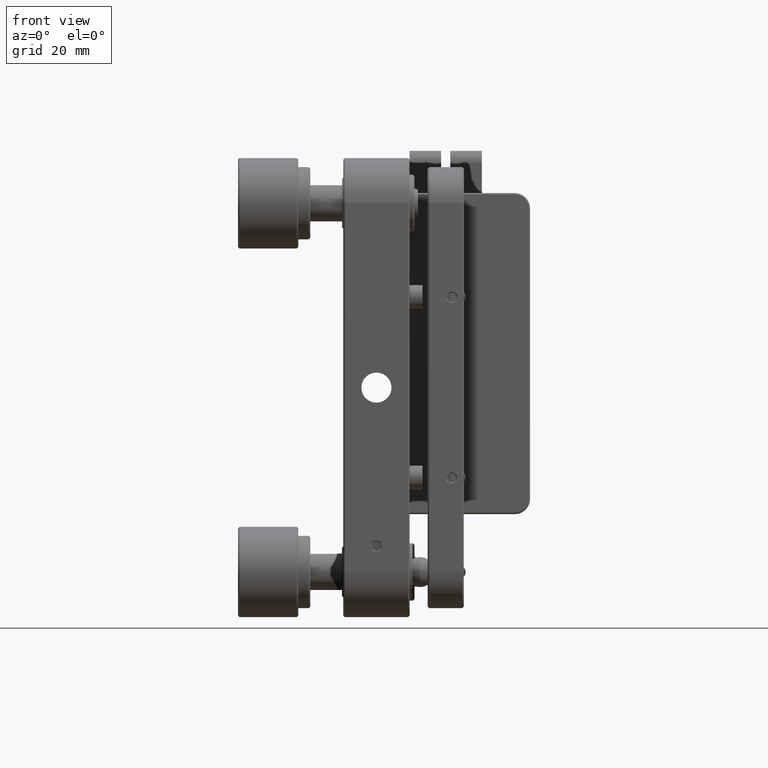
[diagram: clean part render]
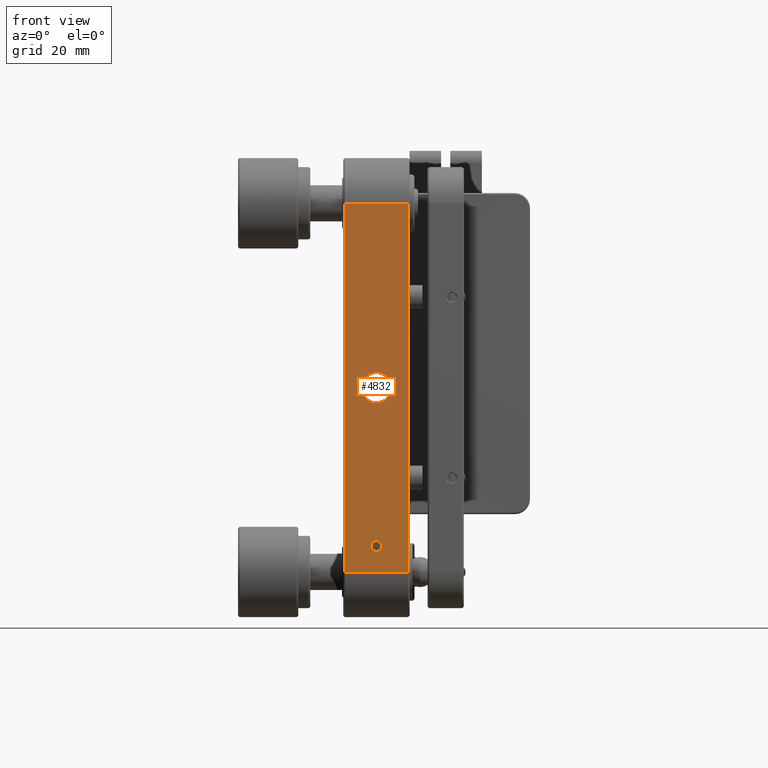
[diagram: same view with one face highlighted and labeled with its STEP entity id]
A machine part, front view. The second image highlights one B-rep face of the part: STEP entity #4832.
In plain terms, the highlighted planar face has unit normal (0, -1, 0).
Its self-contained STEP definition (entity closure, byte-faithful):
#986 = CARTESIAN_POINT ( 'NONE',  ( -6.301199999999999690, -38.10000000000000142, 30.60000000000000142 ) ) ;
#1508 = CARTESIAN_POINT ( 'NONE',  ( 1.583578760805418912E-15, -38.10000000000000142, 2.499999999999987566 ) ) ;
#1657 = CARTESIAN_POINT ( 'NONE',  ( -5.249999999999990230, -38.10000000000000142, 36.72120000000000317 ) ) ;
#2444 = CARTESIAN_POINT ( 'NONE',  ( -5.249999999999986677, -38.09999999999999432, -30.59999999999998366 ) ) ;
#2565 = DIRECTION ( 'NONE',  ( 0.000000000000000000, 0.000000000000000000, -1.000000000000000000 ) ) ;
#3089 = DIRECTION ( 'NONE',  ( 0.000000000000000000, -0.000000000000000000, -1.000000000000000000 ) ) ;
#3486 = ORIENTED_EDGE ( 'NONE', *, *, #30453, .T. ) ;
#3699 = CARTESIAN_POINT ( 'NONE',  ( 5.250000000000011546, -38.10000000000001563, 30.60000000000002274 ) ) ;
#4149 = EDGE_CURVE ( 'NONE', #18519, #43797, #23064, .T. ) ;
#4412 = EDGE_CURVE ( 'NONE', #18931, #13439, #33687, .T. ) ;
#4832 = ADVANCED_FACE ( 'NONE', ( #7666, #44628, #15331 ), #14859, .T. ) ;
#5293 = CARTESIAN_POINT ( 'NONE',  ( 1.277417061018581239E-15, -38.10000000000000142, -6.081347663385001879E-15 ) ) ;
#7166 = EDGE_CURVE ( 'NONE', #13439, #18931, #40542, .T. ) ;
#7666 = FACE_BOUND ( 'NONE', #19840, .T. ) ;
#9333 = CARTESIAN_POINT ( 'NONE',  ( 5.250000000000015987, -38.10000000000001563, -36.72120000000000317 ) ) ;
#10008 = DIRECTION ( 'NONE',  ( 0.000000000000000000, 1.000000000000000000, -0.000000000000000000 ) ) ;
#10637 = EDGE_CURVE ( 'NONE', #28391, #34906, #25081, .T. ) ;
#10994 = DIRECTION ( 'NONE',  ( 0.000000000000000000, 0.000000000000000000, -1.000000000000000000 ) ) ;
#11392 = DIRECTION ( 'NONE',  ( 0.000000000000000000, 0.000000000000000000, -1.000000000000000000 ) ) ;
#12252 = DIRECTION ( 'NONE',  ( -1.000000000000000000, -0.000000000000000000, -0.000000000000000000 ) ) ;
#13439 = VERTEX_POINT ( 'NONE', #32873 ) ;
#14859 = PLANE ( 'NONE',  #37484 ) ;
#15331 = FACE_BOUND ( 'NONE', #43031, .T. ) ;
#17149 = DIRECTION ( 'NONE',  ( -1.000000000000000000, 0.000000000000000000, 0.000000000000000000 ) ) ;
#17150 = ORIENTED_EDGE ( 'NONE', *, *, #4412, .T. ) ;
#18519 = VERTEX_POINT ( 'NONE', #3699 ) ;
#18752 = ORIENTED_EDGE ( 'NONE', *, *, #20279, .T. ) ;
#18931 = VERTEX_POINT ( 'NONE', #1508 ) ;
#19560 = VECTOR ( 'NONE', #3089, 1000.000000000000000 ) ;
#19840 = EDGE_LOOP ( 'NONE', ( #44523, #17150 ) ) ;
#19902 = LINE ( 'NONE', #1657, #43959 ) ;
#19934 = DIRECTION ( 'NONE',  ( 0.000000000000000000, 1.000000000000000000, 0.000000000000000000 ) ) ;
#20279 = EDGE_CURVE ( 'NONE', #45314, #41940, #36657, .T. ) ;
#20714 = ORIENTED_EDGE ( 'NONE', *, *, #38675, .F. ) ;
#21381 = AXIS2_PLACEMENT_3D ( 'NONE', #29235, #43875, #10994 ) ;
#23064 = LINE ( 'NONE', #986, #23732 ) ;
#23732 = VECTOR ( 'NONE', #12252, 1000.000000000000000 ) ;
#24193 = ORIENTED_EDGE ( 'NONE', *, *, #4149, .T. ) ;
#25081 = LINE ( 'NONE', #36335, #30051 ) ;
#25713 = ORIENTED_EDGE ( 'NONE', *, *, #32130, .T. ) ;
#26608 = CARTESIAN_POINT ( 'NONE',  ( -6.301199999999999690, -38.10000000000000142, 36.72120000000000317 ) ) ;
#26858 = CARTESIAN_POINT ( 'NONE',  ( 1.102182119232625183E-16, -38.09999999999996589, -25.39999999999999503 ) ) ;
#27167 = CIRCLE ( 'NONE', #37881, 0.9000000000000084599 ) ;
#28391 = VERTEX_POINT ( 'NONE', #43445 ) ;
#29235 = CARTESIAN_POINT ( 'NONE',  ( 1.277417061018581239E-15, -38.10000000000000142, -6.081347663385001879E-15 ) ) ;
#30051 = VECTOR ( 'NONE', #17149, 1000.000000000000000 ) ;
#30453 = EDGE_CURVE ( 'NONE', #41940, #45314, #27167, .T. ) ;
#31196 = DIRECTION ( 'NONE',  ( 0.000000000000000000, 0.000000000000000000, -1.000000000000000000 ) ) ;
#32063 = CARTESIAN_POINT ( 'NONE',  ( 0.000000000000000000, -38.09999999999996589, -27.20000000000000639 ) ) ;
#32130 = EDGE_CURVE ( 'NONE', #43797, #34906, #19902, .T. ) ;
#32873 = CARTESIAN_POINT ( 'NONE',  ( 1.277417061018581239E-15, -38.10000000000000142, -2.499999999999999556 ) ) ;
#33687 = CIRCLE ( 'NONE', #45961, 2.499999999999993339 ) ;
#34046 = DIRECTION ( 'NONE',  ( 0.000000000000000000, -0.000000000000000000, -1.000000000000000000 ) ) ;
#34693 = CARTESIAN_POINT ( 'NONE',  ( -5.249999999999990230, -38.10000000000000142, 30.60000000000001208 ) ) ;
#34906 = VERTEX_POINT ( 'NONE', #2444 ) ;
#35672 = CARTESIAN_POINT ( 'NONE',  ( 0.000000000000000000, -38.09999999999996589, -26.30000000000000071 ) ) ;
#36335 = CARTESIAN_POINT ( 'NONE',  ( 0.000000000000000000, -38.10000000000000142, -30.59999999999997300 ) ) ;
#36657 = CIRCLE ( 'NONE', #47415, 0.9000000000000084599 ) ;
#37052 = DIRECTION ( 'NONE',  ( 0.000000000000000000, 1.000000000000000000, -0.000000000000000000 ) ) ;
#37484 = AXIS2_PLACEMENT_3D ( 'NONE', #26608, #41236, #44390 ) ;
#37881 = AXIS2_PLACEMENT_3D ( 'NONE', #40659, #37052, #11392 ) ;
#38675 = EDGE_CURVE ( 'NONE', #18519, #28391, #42210, .T. ) ;
#39460 = ORIENTED_EDGE ( 'NONE', *, *, #10637, .F. ) ;
#40542 = CIRCLE ( 'NONE', #21381, 2.499999999999993339 ) ;
#40659 = CARTESIAN_POINT ( 'NONE',  ( 0.000000000000000000, -38.09999999999996589, -26.30000000000000071 ) ) ;
#41236 = DIRECTION ( 'NONE',  ( 0.000000000000000000, -1.000000000000000000, 0.000000000000000000 ) ) ;
#41940 = VERTEX_POINT ( 'NONE', #26858 ) ;
#42210 = LINE ( 'NONE', #9333, #19560 ) ;
#43031 = EDGE_LOOP ( 'NONE', ( #18752, #3486 ) ) ;
#43445 = CARTESIAN_POINT ( 'NONE',  ( 5.249999999999999112, -38.10000000000000853, -30.59999999999999076 ) ) ;
#43797 = VERTEX_POINT ( 'NONE', #34693 ) ;
#43875 = DIRECTION ( 'NONE',  ( 0.000000000000000000, 1.000000000000000000, 0.000000000000000000 ) ) ;
#43959 = VECTOR ( 'NONE', #34046, 1000.000000000000000 ) ;
#44390 = DIRECTION ( 'NONE',  ( 0.000000000000000000, -0.000000000000000000, -1.000000000000000000 ) ) ;
#44523 = ORIENTED_EDGE ( 'NONE', *, *, #7166, .T. ) ;
#44628 = FACE_OUTER_BOUND ( 'NONE', #45205, .T. ) ;
#45205 = EDGE_LOOP ( 'NONE', ( #24193, #25713, #39460, #20714 ) ) ;
#45314 = VERTEX_POINT ( 'NONE', #32063 ) ;
#45961 = AXIS2_PLACEMENT_3D ( 'NONE', #5293, #19934, #31196 ) ;
#47415 = AXIS2_PLACEMENT_3D ( 'NONE', #35672, #10008, #2565 ) ;